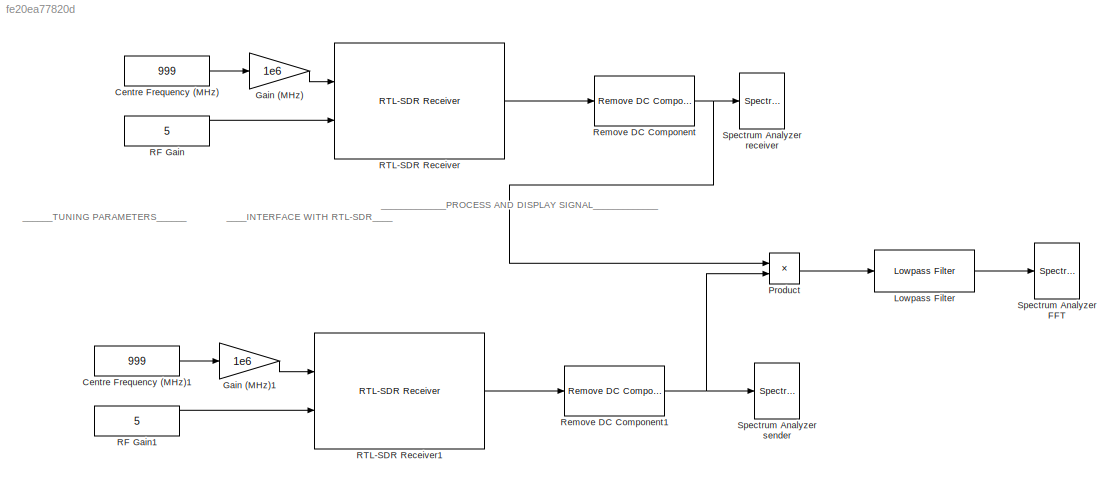
MODEL slx_fe20ea77820d
KIND model
CONFIG AbsTol = auto
CONFIG EnableMultiTasking = on
CONFIG FixedStep = auto
CONFIG MaxStep = auto
CONFIG MinStep = auto
CONFIG PostLoadFcn = run('control_panel.m');\n
CONFIG PreLoadFcn = %%%%%%%%%%%%%%%%%%%%%%%%%%%%%%%%%%%%%%%%%%%%%%%%%%%%%%%%%%%%%%%%%%%%%%%%%%%\n% check to see if Simulink library folder is missing from the MATLAB path %\n%%%%%%%%%%%%%%%%%%%%%%%%%%%%%%%%%%%%%%%%%%%%%%%%%%%%%%%%%%%%%%%%%%%%%%%%%%%\nif isempty(strfind(path, 'rtlsdr_book_library'))\n    \n    % create error window\n    fig_error = figure(...\n        'Name', 'Error: RTL-SDR Book Library',...\n        'Toolba...<+2697ch>
CONFIG RelTol = 1e-3
CONFIG SampleTimeConstraint = Unconstrained
CONFIG Solver = FixedStepDiscrete
CONFIG SolverName = FixedStepDiscrete
CONFIG StartFcn = try\nrun('control_panel.m');\nend\n\n
CONFIG StartTime = 0.0
CONFIG StopTime = inf
BLOCK [Constant] Centre Frequency (MHz)
  Value = 999
BLOCK [Constant] Centre Frequency (MHz)1
  Value = 999
BLOCK [Gain] Gain (MHz)
  Gain = 1e6
  OutDataTypeStr = Inherit: Inherit via internal rule
  ParamDataTypeStr = Inherit: Inherit via internal rule
  SaturateOnIntegerOverflow = off
BLOCK [Gain] Gain (MHz)1
  Gain = 1e6
  OutDataTypeStr = Inherit: Inherit via internal rule
  ParamDataTypeStr = Inherit: Inherit via internal rule
  SaturateOnIntegerOverflow = off
BLOCK [Reference] Lowpass Filter  REF=dspfdesign/Lowpass Filter
  Ports = [1, 1]
  SourceBlock = dspfdesign/Lowpass Filter
  SourceType = dsp.LowpassFilter
BLOCK [Product] Product
  InputSameDT = off
  OutDataTypeStr = Inherit: Inherit via internal rule
  Ports = [2, 1]
  RndMeth = Floor
  SaturateOnIntegerOverflow = off
BLOCK [Constant] RF Gain
  Value = 5
BLOCK [Constant] RF Gain1
  Value = 5
BLOCK [Reference] RTL-SDR Receiver  REF=sdrrlib/RTL-SDR
Receiver
  Ports = [2, 1]
  SourceBlock = sdrrlib/RTL-SDR\nReceiver
  SourceLibraryInfo = This block requires <a href="http://www.mathworks.com/hardware-support/rtl-sdr.html">Communications System Toolbox Support Package for RTL-SDR Radio</a>
  SourceType = RTL-SDR Receiver
BLOCK [Reference] RTL-SDR Receiver1  REF=sdrrlib/RTL-SDR
Receiver
  Ports = [2, 1]
  SourceBlock = sdrrlib/RTL-SDR\nReceiver
  SourceLibraryInfo = This block requires <a href="http://www.mathworks.com/hardware-support/rtl-sdr.html">Communications System Toolbox Support Package for RTL-SDR Radio</a>
  SourceType = RTL-SDR Receiver
BLOCK [Reference] Remove DC Component  REF=rtlsdr_book_library/Additional Tools/Remove DC  (lib defined in slx_12414fe83126, slx_a1558d2e1022)
Component
  Ports = [1, 1]
  SourceBlock = rtlsdr_book_library/Additional Tools/Remove DC\nComponent
BLOCK [Reference] Remove DC Component1  REF=rtlsdr_book_library/Additional Tools/Remove DC  (lib defined in slx_12414fe83126, slx_a1558d2e1022)
Component
  Ports = [1, 1]
  SourceBlock = rtlsdr_book_library/Additional Tools/Remove DC\nComponent
BLOCK [SpectrumAnalyzer] Spectrum Analyzer FFT
  Commented = on
  NumInputPorts = 1
  Ports = [1]
  ScopeSpecificationString = spbscopes.SpectrumAnalyzerBlockCfg('CurrentConfiguration', extmgr.ConfigurationSet(extmgr.Configuration('Core','General UI',true,'ShowPlaybackToolbar',false,'ShowStatusbar',false,'FigureColor',[0.941176470588235 0.941176470588235 0.941176470588235]),extmgr.Configuration('Core','Source UI',true),extmgr.Configuration('Sources','WiredSimulink',true),extmgr.Configuration('Sources','SPTool',false),extm...<+2132ch>
  StartFcn = startfcn_spectrum_analyzer;
BLOCK [SpectrumAnalyzer] Spectrum Analyzer receiver
  NumInputPorts = 1
  Ports = [1]
  ScopeSpecificationString = spbscopes.SpectrumAnalyzerBlockCfg('CurrentConfiguration', extmgr.ConfigurationSet(extmgr.Configuration('Core','General UI',true,'ShowPlaybackToolbar',false,'ShowStatusbar',false,'FigureColor',[0.941176470588235 0.941176470588235 0.941176470588235]),extmgr.Configuration('Core','Source UI',true),extmgr.Configuration('Sources','WiredSimulink',true),extmgr.Configuration('Sources','SPTool',false),extm...<+2131ch>
  StartFcn = startfcn_spectrum_analyzer;
BLOCK [SpectrumAnalyzer] Spectrum Analyzer sender
  NumInputPorts = 1
  Ports = [1]
  ScopeSpecificationString = spbscopes.SpectrumAnalyzerBlockCfg('CurrentConfiguration', extmgr.ConfigurationSet(extmgr.Configuration('Core','General UI',true,'ShowPlaybackToolbar',false,'ShowStatusbar',false,'FigureColor',[0.941176470588235 0.941176470588235 0.941176470588235]),extmgr.Configuration('Core','Source UI',true),extmgr.Configuration('Sources','WiredSimulink',true),extmgr.Configuration('Sources','SPTool',false),extm...<+2132ch>
  StartFcn = startfcn_spectrum_analyzer;
ANNOTATION (root): ____INTERFACE WITH RTL-SDR____
ANNOTATION (root): ______TUNING PARAMETERS______
ANNOTATION (root): _____________PROCESS AND DISPLAY SIGNAL_____________
LINE Centre Frequency (MHz)1:1 -> Gain (MHz)1:1
LINE Centre Frequency (MHz):1 -> Gain (MHz):1
LINE Gain (MHz)1:1 -> RTL-SDR Receiver1:1
LINE Gain (MHz):1 -> RTL-SDR Receiver:1
LINE Lowpass Filter:1 -> Spectrum Analyzer FFT:1
LINE Product:1 -> Lowpass Filter:1
LINE RF Gain1:1 -> RTL-SDR Receiver1:2
LINE RF Gain:1 -> RTL-SDR Receiver:2
LINE RTL-SDR Receiver1:1 -> Remove DC Component1:1
LINE RTL-SDR Receiver:1 -> Remove DC Component:1
NET Remove DC Component1:1 -> Product:2, Spectrum Analyzer sender:1
NET Remove DC Component:1 -> Product:1, Spectrum Analyzer receiver:1
note: NET lines group one-source signal fan-out (src -> all destinations, sorted); 1:1 wires keep LINE
